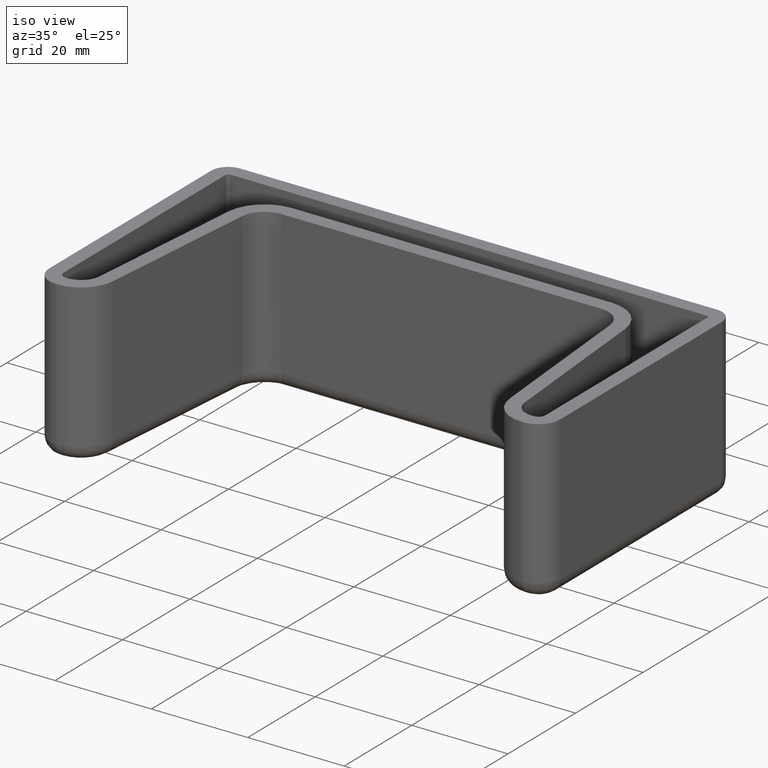
[diagram: clean part render]
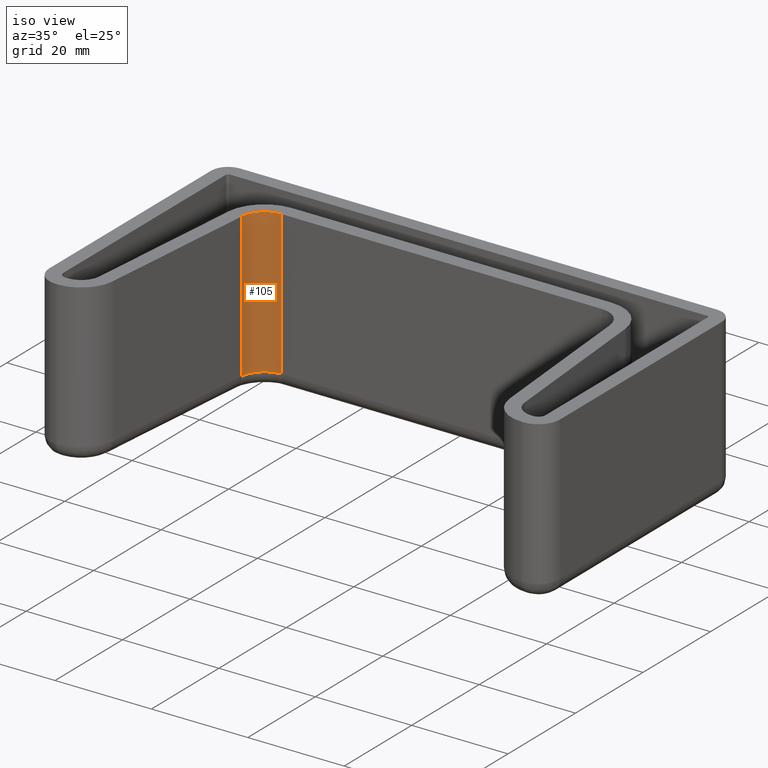
[diagram: same view with one face highlighted and labeled with its STEP entity id]
A machine part, iso view. The second image highlights one B-rep face of the part: STEP entity #105.
In plain terms, the highlighted cylindrical surface (edge-blend (fillet) strip) has radius 5 mm, axis along (-0, -0, -1).
Its self-contained STEP definition (entity closure, byte-faithful):
#105 = ADVANCED_FACE( '', ( #188 ), #189, .F. );
#188 = FACE_OUTER_BOUND( '', #351, .T. );
#189 = CYLINDRICAL_SURFACE( '', #352, 5.00000000000000 );
#351 = EDGE_LOOP( '', ( #631, #632, #633, #634 ) );
#352 = AXIS2_PLACEMENT_3D( '', #635, #636, #637 );
#631 = ORIENTED_EDGE( '', *, *, #892, .F. );
#632 = ORIENTED_EDGE( '', *, *, #834, .T. );
#633 = ORIENTED_EDGE( '', *, *, #804, .T. );
#634 = ORIENTED_EDGE( '', *, *, #893, .T. );
#635 = CARTESIAN_POINT( '', ( -33.2013506078606, -10.5000000000000, -29.9998116069360 ) );
#636 = DIRECTION( '', ( -1.22460635382238E-016, -1.22460635382238E-016, -1.00000000000000 ) );
#637 = DIRECTION( '', ( -0.675590207615659, 0.737277336810125, -7.55424503606052E-018 ) );
#804 = EDGE_CURVE( '', #947, #945, #948, .T. );
#834 = EDGE_CURVE( '', #1000, #947, #1002, .T. );
#892 = EDGE_CURVE( '', #1000, #1091, #1092, .T. );
#893 = EDGE_CURVE( '', #945, #1091, #1093, .T. );
#945 = VERTEX_POINT( '', #1159 );
#947 = VERTEX_POINT( '', #1162 );
#948 = CIRCLE( '', #1163, 5.00000000000000 );
#1000 = VERTEX_POINT( '', #1232 );
#1002 = LINE( '', #1235, #1236 );
#1091 = VERTEX_POINT( '', #1357 );
#1092 = CIRCLE( '', #1358, 5.00000000000000 );
#1093 = LINE( '', #1359, #1360 );
#1159 = CARTESIAN_POINT( '', ( -38.1823240983193, -10.0642212862617, 0.000188393064011316 ) );
#1162 = CARTESIAN_POINT( '', ( -33.2013506078606, -5.49999999999995, 0.000188393064010757 ) );
#1163 = AXIS2_PLACEMENT_3D( '', #1434, #1435, #1436 );
#1232 = CARTESIAN_POINT( '', ( -33.2013506078606, -5.49999999999995, -29.9998116069360 ) );
#1235 = CARTESIAN_POINT( '', ( -33.2013506078606, -5.49999999999995, -29.9998116069360 ) );
#1236 = VECTOR( '', #1488, 1000.00000000000 );
#1357 = CARTESIAN_POINT( '', ( -38.1823240983193, -10.0642212862617, -29.9998116069360 ) );
#1358 = AXIS2_PLACEMENT_3D( '', #1596, #1597, #1598 );
#1359 = CARTESIAN_POINT( '', ( -38.1823240983193, -10.0642212862617, -29.9998116069360 ) );
#1360 = VECTOR( '', #1599, 1000.00000000000 );
#1434 = CARTESIAN_POINT( '', ( -33.2013506078606, -10.5000000000000, 0.000188393064011370 ) );
#1435 = DIRECTION( '', ( 1.22460635382238E-016, 1.22460635382238E-016, 1.00000000000000 ) );
#1436 = DIRECTION( '', ( -0.675590207615659, 0.737277336810125, -7.55424503606052E-018 ) );
#1488 = DIRECTION( '', ( 1.22460635382238E-016, 1.22460635382238E-016, 1.00000000000000 ) );
#1596 = CARTESIAN_POINT( '', ( -33.2013506078606, -10.5000000000000, -29.9998116069360 ) );
#1597 = DIRECTION( '', ( 1.22460635382238E-016, 1.22460635382238E-016, 1.00000000000000 ) );
#1598 = DIRECTION( '', ( -0.675590207615660, 0.737277336810125, -7.55424503606035E-018 ) );
#1599 = DIRECTION( '', ( -1.22460635382238E-016, -1.22460635382238E-016, -1.00000000000000 ) );